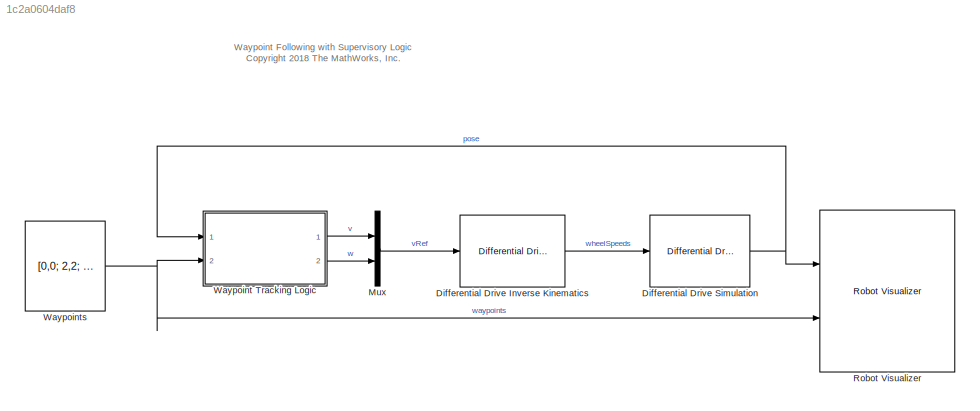
MODEL slx_1c2a0604daf8
KIND model
CONFIG AbsTol = auto
CONFIG EnableMultiTasking = on
CONFIG FixedStep = 0.01
CONFIG MaxStep = auto
CONFIG MinStep = auto
CONFIG PreLoadFcn = % Simulation parameters\nsampleTime = 0.05;\n\n% Vehicle parameters\nR = 0.1;\nL = 0.5;
CONFIG RelTol = 1e-3
CONFIG SampleTimeConstraint = Unconstrained
CONFIG Solver = VariableStepAuto
CONFIG SolverName = VariableStepAuto
CONFIG StartTime = 0.0
CONFIG StopTime = 25
BLOCK [Reference] Differential Drive Inverse Kinematics  REF=mobileRoboticsLib/Kinematic Models/Differential Drive/Differential Drive
Inverse Kinematics
  Ports = [1, 1]
  SourceBlock = mobileRoboticsLib/Kinematic Models/Differential Drive/Differential Drive\nInverse Kinematics
  SourceProductName = Mobile Robotics Simulation Library
  SourceType = Differential Drive Inverse Kinematics
BLOCK [Reference] Differential Drive Simulation  REF=mobileRoboticsLib/Kinematic Models/Differential Drive/Differential Drive Simulation
  Ports = [1, 1]
  SourceBlock = mobileRoboticsLib/Kinematic Models/Differential Drive/Differential Drive Simulation
  SourceProductName = Mobile Robotics Simulation Library
  SourceType = Differential Drive Simulation
BLOCK [Mux] Mux
  DisplayOption = bar
  Inputs = 2
  Ports = [2, 1]
BLOCK [Reference] Robot Visualizer  REF=mobileRoboticsLib/Environments/Robot Visualizer
  Ports = [2]
  Priority = 99
  SourceBlock = mobileRoboticsLib/Environments/Robot Visualizer
  SourceProductName = Ground Vehicles Library
  SourceType = Visualizer2D
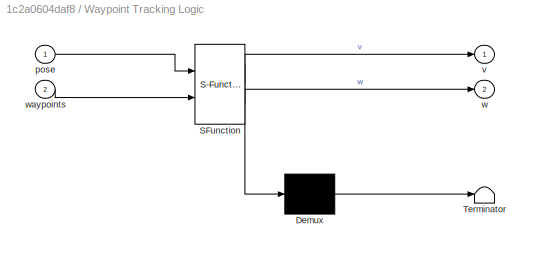
BLOCK [SubSystem] Waypoint Tracking Logic
  ErrorFcn = Stateflow.Translate.translate
  PermitHierarchicalResolution = ExplicitOnly
  Ports = [2, 2]
  RequestExecContextInheritance = off
  SFBlockType = Chart
  TreatAsAtomicUnit = on
BLOCK [Demux] Waypoint Tracking Logic/ Demux 
  Outputs = 1
  Ports = [1, 1]
BLOCK [S-Function] Waypoint Tracking Logic/ SFunction 
  EnableBusSupport = off
  FunctionName = sf_sfun
  PortCounts = [2 3]
  Ports = [2, 3]
  SFcnIsStateOwnerBlock = off
  SFunctionDeploymentMode = off
  Tag = Stateflow S-Function mrsDiffDriveWaypointLogicModel 3
BLOCK [Terminator] Waypoint Tracking Logic/ Terminator 
BLOCK [Inport] Waypoint Tracking Logic/pose
  IconDisplay = Port number
BLOCK [Outport] Waypoint Tracking Logic/v
  IconDisplay = Port number
BLOCK [Outport] Waypoint Tracking Logic/w
  IconDisplay = Port number
  Port = 2
BLOCK [Inport] Waypoint Tracking Logic/waypoints
  IconDisplay = Port number
  Port = 2
BLOCK [Constant] Waypoints
  Value = [0,0; 2,2; 4,2; 2,4; 0.5,3]
ANNOTATION (root): Waypoint Following with Supervisory Logic <copyright redacted>
LINE Differential Drive Inverse Kinematics:1 -> Differential Drive Simulation:1
NET Differential Drive Simulation:1 -> Robot Visualizer:1, Waypoint Tracking Logic:1
LINE Mux:1 -> Differential Drive Inverse Kinematics:1
LINE Waypoint Tracking Logic:1 -> Mux:1
LINE Waypoint Tracking Logic:2 -> Mux:2
NET Waypoints:1 -> Robot Visualizer:2, Waypoint Tracking Logic:2
note: NET lines group one-source signal fan-out (src -> all destinations, sorted); 1:1 wires keep LINE
CHART Waypoint Tracking Logic states=3 transitions=11
  STATE_LABEL 'FollowWaypoints\nentry:\ngoalPoint = waypoints(idx,:);\nentry, during:\n[angle,range] = trackGoal(goalPoint);'
  STATE_LABEL '% Set angular speed if\n% angle outside deadband\n[abs(angle) > pi/24]'
  STATE_LABEL '{w = 0;}'
  STATE_LABEL '% Proportional \n% control \n{w = 1.5*angle;}'
  STATE_LABEL 'ReachedGoal\nentry:\nv = 0;\nw = 0.5;'
  STATE_LABEL '[ang,dist] = trackGoal(goal)'
  STATE_LABEL 'SCRIPT:\nfunction [ang,dist] = trackGoal(goal)\n% Finds the angle (theta) and distance (dist) between the \n% vehicle and a goal point\n    \nposDiff = [goal(1)-pose(1);goal(2)-pose(2)];\n\nang = angdiff(pose(3),atan2(posDiff(2),posDiff(1)));\ndist = sqrt(posDiff(1)^2 + posDiff(2)^2);\n'
